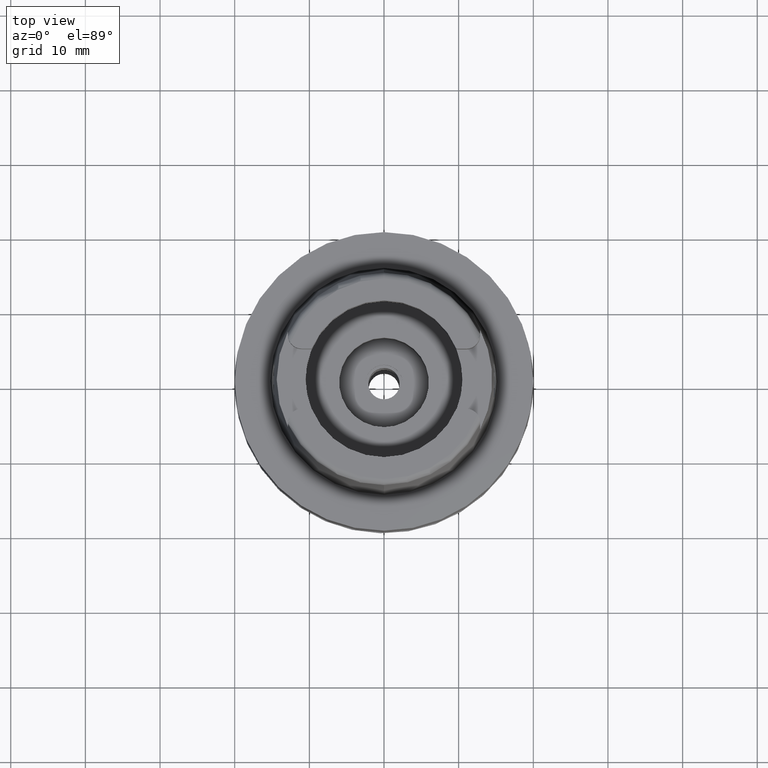
[diagram: clean part render]
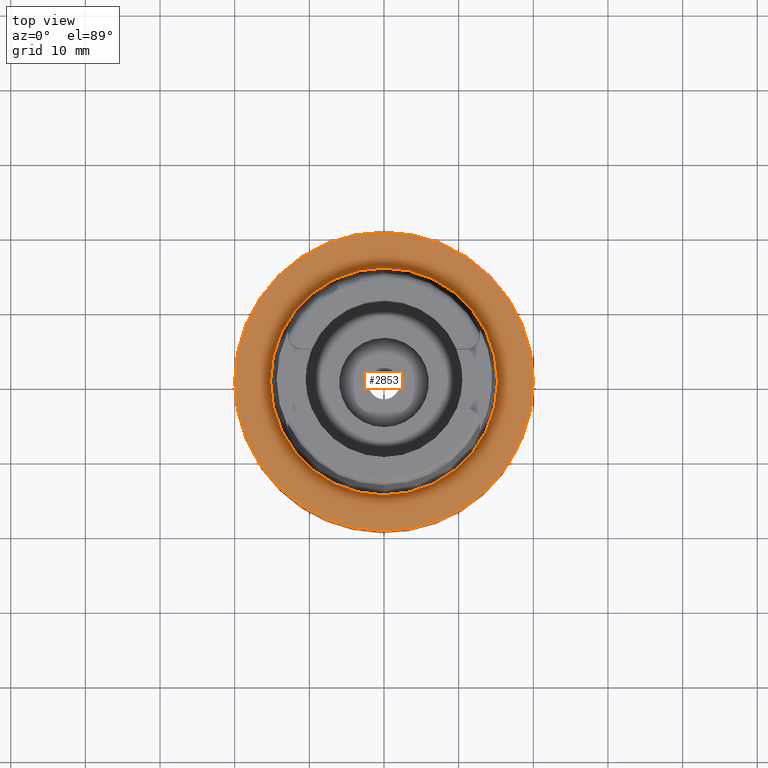
[diagram: same view with one face highlighted and labeled with its STEP entity id]
A machine part, top view. The second image highlights one B-rep face of the part: STEP entity #2853.
In plain terms, the highlighted planar face has unit normal (0, 0, 1).
Its self-contained STEP definition (entity closure, byte-faithful):
#222 = CARTESIAN_POINT ( 'NONE',  ( 0.0000000000000000000, -20.00000000000000000, 4.973799150320999175E-14 ) ) ;
#313 = FACE_BOUND ( 'NONE', #2110, .T. ) ;
#336 = DIRECTION ( 'NONE',  ( 1.000000000000000000, 0.0000000000000000000, 0.0000000000000000000 ) ) ;
#491 = DIRECTION ( 'NONE',  ( 0.0000000000000000000, 0.0000000000000000000, -1.000000000000000000 ) ) ;
#992 = VERTEX_POINT ( 'NONE', #3066 ) ;
#1431 = CARTESIAN_POINT ( 'NONE',  ( 0.0000000000000000000, 20.00000000000000000, 2.842170943039999687E-14 ) ) ;
#1479 = PLANE ( 'NONE',  #2038 ) ;
#1660 = EDGE_CURVE ( 'NONE', #4726, #2333, #2637, .T. ) ;
#1699 = DIRECTION ( 'NONE',  ( 0.0000000000000000000, 0.0000000000000000000, 1.000000000000000000 ) ) ;
#1754 = EDGE_CURVE ( 'NONE', #2423, #992, #2200, .T. ) ;
#2038 = AXIS2_PLACEMENT_3D ( 'NONE', #4944, #4444, #336 ) ;
#2110 = EDGE_LOOP ( 'NONE', ( #4757, #2408 ) ) ;
#2200 = CIRCLE ( 'NONE', #2724, 15.20000663301000010 ) ;
#2276 = CIRCLE ( 'NONE', #4381, 15.20000663301000010 ) ;
#2333 = VERTEX_POINT ( 'NONE', #222 ) ;
#2408 = ORIENTED_EDGE ( 'NONE', *, *, #4941, .F. ) ;
#2423 = VERTEX_POINT ( 'NONE', #4869 ) ;
#2547 = EDGE_LOOP ( 'NONE', ( #2558, #3577 ) ) ;
#2558 = ORIENTED_EDGE ( 'NONE', *, *, #1660, .F. ) ;
#2637 = CIRCLE ( 'NONE', #4478, 20.00000000000000000 ) ;
#2724 = AXIS2_PLACEMENT_3D ( 'NONE', #5311, #3694, #4535 ) ;
#2767 = FACE_OUTER_BOUND ( 'NONE', #2547, .T. ) ;
#2853 = ADVANCED_FACE ( 'NONE', ( #2767, #313 ), #1479, .T. ) ;
#3036 = CARTESIAN_POINT ( 'NONE',  ( 0.0000000000000000000, 0.0000000000000000000, 4.973799150320999175E-14 ) ) ;
#3066 = CARTESIAN_POINT ( 'NONE',  ( 0.0000000000000000000, -15.20000663301000010, 4.547473508865000658E-13 ) ) ;
#3208 = EDGE_CURVE ( 'NONE', #2333, #4726, #4063, .T. ) ;
#3314 = CARTESIAN_POINT ( 'NONE',  ( 0.0000000000000000000, 0.0000000000000000000, 4.973799150320999175E-14 ) ) ;
#3577 = ORIENTED_EDGE ( 'NONE', *, *, #3208, .F. ) ;
#3694 = DIRECTION ( 'NONE',  ( 0.0000000000000000000, 0.0000000000000000000, 1.000000000000000000 ) ) ;
#3750 = DIRECTION ( 'NONE',  ( 0.0000000000000000000, 1.000000000000000000, 0.0000000000000000000 ) ) ;
#3790 = CARTESIAN_POINT ( 'NONE',  ( 0.0000000000000000000, 0.0000000000000000000, 7.958078640512999903E-13 ) ) ;
#3892 = DIRECTION ( 'NONE',  ( 0.0000000000000000000, -1.000000000000000000, 0.0000000000000000000 ) ) ;
#3973 = AXIS2_PLACEMENT_3D ( 'NONE', #3036, #491, #4716 ) ;
#4063 = CIRCLE ( 'NONE', #3973, 20.00000000000000000 ) ;
#4381 = AXIS2_PLACEMENT_3D ( 'NONE', #3790, #1699, #3892 ) ;
#4444 = DIRECTION ( 'NONE',  ( 0.0000000000000000000, 0.0000000000000000000, 1.000000000000000000 ) ) ;
#4478 = AXIS2_PLACEMENT_3D ( 'NONE', #3314, #5086, #3750 ) ;
#4535 = DIRECTION ( 'NONE',  ( 0.0000000000000000000, 1.000000000000000000, 0.0000000000000000000 ) ) ;
#4716 = DIRECTION ( 'NONE',  ( 0.0000000000000000000, -1.000000000000000000, 0.0000000000000000000 ) ) ;
#4726 = VERTEX_POINT ( 'NONE', #1431 ) ;
#4757 = ORIENTED_EDGE ( 'NONE', *, *, #1754, .F. ) ;
#4869 = CARTESIAN_POINT ( 'NONE',  ( 0.0000000000000000000, 15.20000663301000010, 7.958078640512999903E-13 ) ) ;
#4941 = EDGE_CURVE ( 'NONE', #992, #2423, #2276, .T. ) ;
#4944 = CARTESIAN_POINT ( 'NONE',  ( 0.0000000000000000000, 0.0000000000000000000, 0.0000000000000000000 ) ) ;
#5086 = DIRECTION ( 'NONE',  ( 0.0000000000000000000, 0.0000000000000000000, -1.000000000000000000 ) ) ;
#5311 = CARTESIAN_POINT ( 'NONE',  ( 0.0000000000000000000, 0.0000000000000000000, 7.958078640512999903E-13 ) ) ;